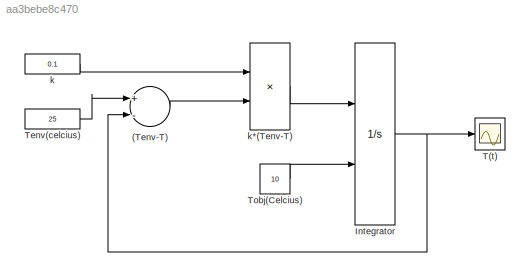
MODEL slx_aa3bebe8c470
KIND model
CONFIG AbsTol = auto
CONFIG EnableMultiTasking = off
CONFIG FixedStep = auto
CONFIG MaxStep = auto
CONFIG MinStep = auto
CONFIG RelTol = 1e-3
CONFIG SampleTimeConstraint = Unconstrained
CONFIG Solver = VariableStepAuto
CONFIG SolverName = VariableStepAuto
CONFIG StartTime = 0.0
CONFIG StopTime = 80
BLOCK [Sum] (Tenv-T)
  InputSameDT = off
  Inputs = +-
  OutDataTypeStr = Inherit: Inherit via internal rule
  Ports = [2, 1]
  SaturateOnIntegerOverflow = off
BLOCK [Integrator] Integrator
  InitialCondition = 100
  InitialConditionSource = external
  Ports = [2, 1]
BLOCK [Scope] T(t)
  NumInputPorts = 1
  Ports = [1]
  ScopeSpecificationString = Simulink.scopes.TimeScopeBlockCfg('CurrentConfiguration', extmgr.ConfigurationSet(extmgr.Configuration('Core','General UI',true),extmgr.Configuration('Core','Source UI',true),extmgr.Configuration('Sources','WiredSimulink',true,'DataLogging',true),extmgr.Configuration('Visuals','Time Domain',true,'SerializedDisplays',{struct('MinYLimReal','8.12563','MaxYLimReal','26.86934','YLabelReal','Object Temp...<+1684ch>
BLOCK [Constant] Tenv(celcius)
  Value = 25
BLOCK [Constant] Tobj(Celcius)
  Value = 10
BLOCK [Constant] k
  Value = 0.1
BLOCK [Product] k*(Tenv-T)
  InputSameDT = off
  OutDataTypeStr = Inherit: Inherit via internal rule
  Ports = [2, 1]
  RndMeth = Floor
  SaturateOnIntegerOverflow = off
LINE (Tenv-T):1 -> k*(Tenv-T):2
NET Integrator:1 -> (Tenv-T):2, T(t):1
LINE Tenv(celcius):1 -> (Tenv-T):1
LINE Tobj(Celcius):1 -> Integrator:2
LINE k*(Tenv-T):1 -> Integrator:1
LINE k:1 -> k*(Tenv-T):1
note: NET lines group one-source signal fan-out (src -> all destinations, sorted); 1:1 wires keep LINE
